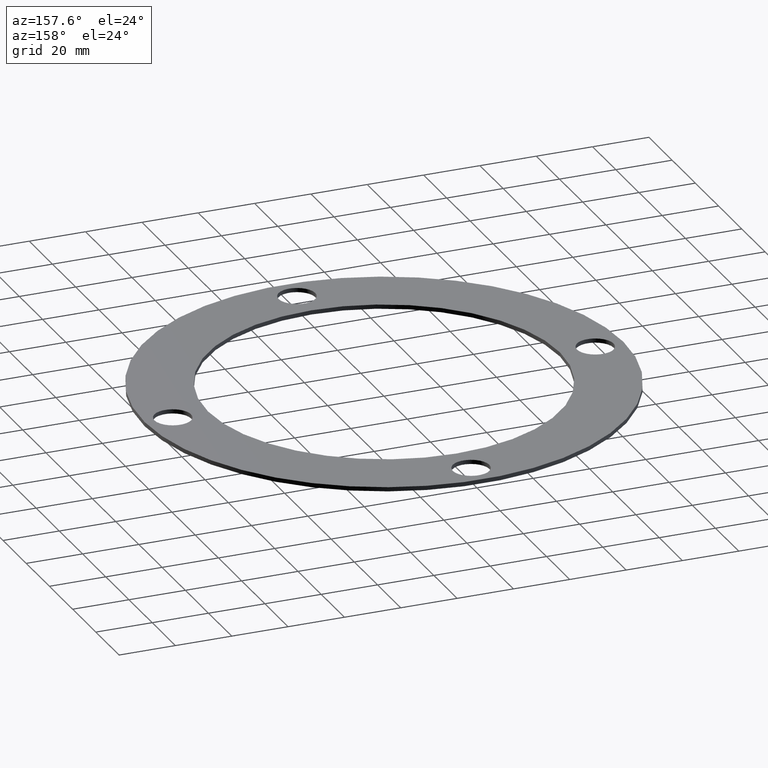
[diagram: clean part render]
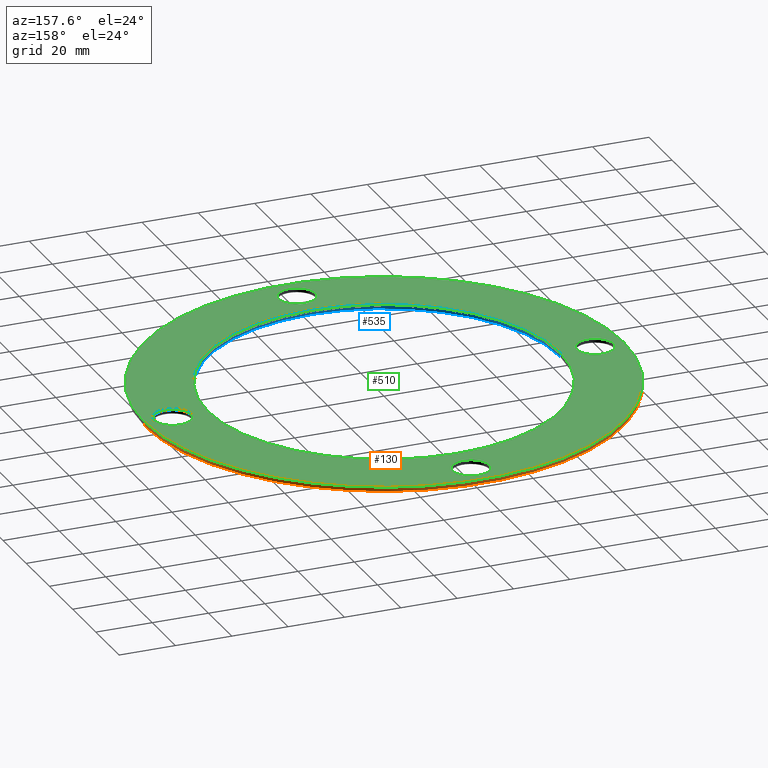
[diagram: same view with three faces highlighted in distinct colors, each labeled with its STEP entity id]
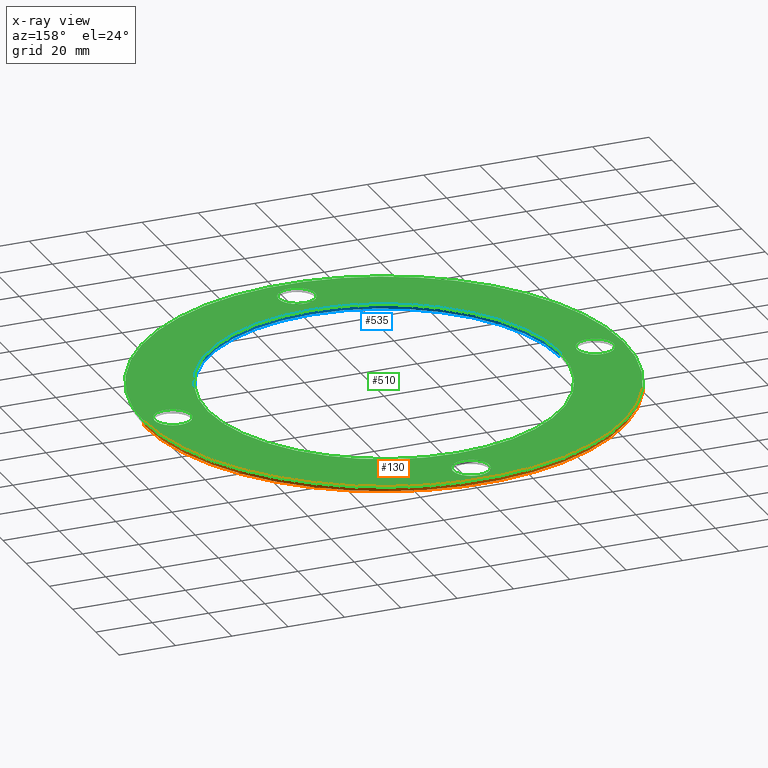
[diagram: x-ray of the same camera — body ghosted, the three highlighted faces saturated]
A machine part, auxiliary view with three faces highlighted in distinct colors.
The next image is the same camera in x-ray (body ghosted, the three faces saturated) — at least one of them is partly hidden behind the body in this view.
Their STEP definitions:

[orange] entity #130 — the highlighted cylindrical surface (partial cylindrical patch) has radius 85 mm, axis along (-0, 0, -1).
#3 = EDGE_CURVE ( 'NONE', #453, #89, #226, .T. ) ;
#15 = CARTESIAN_POINT ( 'NONE',  ( -84.99999999999998579, 1.479114197289397135E-28, 1.499999999999945821 ) ) ;
#54 = AXIS2_PLACEMENT_3D ( 'NONE', #200, #116, #537 ) ;
#70 = DIRECTION ( 'NONE',  ( -1.000000000000000000, 0.000000000000000000, 0.000000000000000000 ) ) ;
#76 = AXIS2_PLACEMENT_3D ( 'NONE', #451, #247, #70 ) ;
#89 = VERTEX_POINT ( 'NONE', #201 ) ;
#116 = DIRECTION ( 'NONE',  ( 8.517425179052550560E-32, -6.044410759837815523E-32, 1.000000000000000000 ) ) ;
#119 = ORIENTED_EDGE ( 'NONE', *, *, #157, .T. ) ;
#125 = DIRECTION ( 'NONE',  ( 1.000000000000000000, 0.000000000000000000, 7.525872184246935696E-32 ) ) ;
#130 = ADVANCED_FACE ( 'NONE', ( #455 ), #497, .T. ) ;
#132 = VECTOR ( 'NONE', #427, 1000.000000000000000 ) ;
#136 = DIRECTION ( 'NONE',  ( -8.517425179052550560E-32, 6.044410759837815523E-32, -1.000000000000000000 ) ) ;
#155 = VERTEX_POINT ( 'NONE', #380 ) ;
#157 = EDGE_CURVE ( 'NONE', #453, #446, #472, .T. ) ;
#189 = EDGE_CURVE ( 'NONE', #446, #155, #449, .T. ) ;
#200 = CARTESIAN_POINT ( 'NONE',  ( -1.972152263052529514E-28, 1.479114197289397135E-28, 1.499999999999945821 ) ) ;
#201 = CARTESIAN_POINT ( 'NONE',  ( -84.99999999999998579, 1.479567528096384971E-28, 1.499999999999945821 ) ) ;
#203 = AXIS2_PLACEMENT_3D ( 'NONE', #505, #212, #125 ) ;
#212 = DIRECTION ( 'NONE',  ( 8.517425179052550560E-32, -6.044410759837815523E-32, 1.000000000000000000 ) ) ;
#213 = EDGE_LOOP ( 'NONE', ( #529, #119, #426, #360 ) ) ;
#226 = CIRCLE ( 'NONE', #54, 84.99999999999998579 ) ;
#229 = CARTESIAN_POINT ( 'NONE',  ( 84.99999999999998579, 1.040949779275264852E-14, -7.239811402194665174E-30 ) ) ;
#247 = DIRECTION ( 'NONE',  ( -8.517425179052550560E-32, 6.044410759837815523E-32, -1.000000000000000000 ) ) ;
#349 = CARTESIAN_POINT ( 'NONE',  ( 84.99999999999998579, 1.040949779275264852E-14, 1.499999999999945821 ) ) ;
#360 = ORIENTED_EDGE ( 'NONE', *, *, #448, .F. ) ;
#380 = CARTESIAN_POINT ( 'NONE',  ( -84.99999999999998579, 1.479567528096384971E-28, 7.239811402194666575E-30 ) ) ;
#419 = VECTOR ( 'NONE', #136, 1000.000000000000000 ) ;
#426 = ORIENTED_EDGE ( 'NONE', *, *, #189, .T. ) ;
#427 = DIRECTION ( 'NONE',  ( -8.517425179052550560E-32, 6.044410759837815523E-32, -1.000000000000000000 ) ) ;
#436 = LINE ( 'NONE', #15, #419 ) ;
#446 = VERTEX_POINT ( 'NONE', #229 ) ;
#448 = EDGE_CURVE ( 'NONE', #89, #155, #436, .T. ) ;
#449 = CIRCLE ( 'NONE', #203, 84.99999999999998579 ) ;
#451 = CARTESIAN_POINT ( 'NONE',  ( -1.972152263052529514E-28, 1.479114197289397135E-28, 1.499999999999945821 ) ) ;
#453 = VERTEX_POINT ( 'NONE', #480 ) ;
#455 = FACE_OUTER_BOUND ( 'NONE', #213, .T. ) ;
#472 = LINE ( 'NONE', #349, #132 ) ;
#480 = CARTESIAN_POINT ( 'NONE',  ( 84.99999999999998579, 1.040949779275264852E-14, 1.499999999999945821 ) ) ;
#497 = CYLINDRICAL_SURFACE ( 'NONE', #76, 84.99999999999998579 ) ;
#505 = CARTESIAN_POINT ( 'NONE',  ( 0.000000000000000000, 0.000000000000000000, 0.000000000000000000 ) ) ;
#529 = ORIENTED_EDGE ( 'NONE', *, *, #3, .F. ) ;
#537 = DIRECTION ( 'NONE',  ( 1.000000000000000000, 0.000000000000000000, 0.000000000000000000 ) ) ;

[blue] entity #535 — the highlighted cylindrical surface (partial cylindrical patch) has radius 62.5 mm, axis along (-0, 0, -1).
#12 = CARTESIAN_POINT ( 'NONE',  ( 62.50000000000000000, 7.654042494671106110E-15, -5.323390736907844100E-30 ) ) ;
#41 = CARTESIAN_POINT ( 'NONE',  ( -1.972152263052529514E-28, 1.479114197289397135E-28, 1.499999999999945821 ) ) ;
#45 = ORIENTED_EDGE ( 'NONE', *, *, #342, .T. ) ;
#52 = DIRECTION ( 'NONE',  ( -8.517425179052550560E-32, 6.044410759837815523E-32, -1.000000000000000000 ) ) ;
#58 = CARTESIAN_POINT ( 'NONE',  ( -62.50000000000000000, 1.479567528096384971E-28, 5.323390736907844100E-30 ) ) ;
#65 = LINE ( 'NONE', #396, #412 ) ;
#81 = FACE_OUTER_BOUND ( 'NONE', #242, .T. ) ;
#83 = CYLINDRICAL_SURFACE ( 'NONE', #499, 62.50000000000000000 ) ;
#85 = DIRECTION ( 'NONE',  ( -8.517425179052550560E-32, 6.044410759837815523E-32, -1.000000000000000000 ) ) ;
#107 = CIRCLE ( 'NONE', #347, 62.50000000000000000 ) ;
#109 = VECTOR ( 'NONE', #85, 1000.000000000000000 ) ;
#110 = EDGE_CURVE ( 'NONE', #356, #377, #107, .T. ) ;
#122 = AXIS2_PLACEMENT_3D ( 'NONE', #220, #173, #216 ) ;
#134 = CARTESIAN_POINT ( 'NONE',  ( 62.50000000000000000, 7.654042494671106110E-15, 1.499999999999945821 ) ) ;
#173 = DIRECTION ( 'NONE',  ( 8.517425179052550560E-32, -6.044410759837815523E-32, 1.000000000000000000 ) ) ;
#195 = ORIENTED_EDGE ( 'NONE', *, *, #430, .F. ) ;
#216 = DIRECTION ( 'NONE',  ( 1.000000000000000000, 0.000000000000000000, 7.525872184246934601E-32 ) ) ;
#220 = CARTESIAN_POINT ( 'NONE',  ( 0.000000000000000000, 0.000000000000000000, 0.000000000000000000 ) ) ;
#237 = EDGE_CURVE ( 'NONE', #444, #479, #329, .T. ) ;
#242 = EDGE_LOOP ( 'NONE', ( #500, #45, #442, #195 ) ) ;
#252 = DIRECTION ( 'NONE',  ( -8.517425179052550560E-32, 6.044410759837815523E-32, -1.000000000000000000 ) ) ;
#329 = CIRCLE ( 'NONE', #122, 62.50000000000000000 ) ;
#342 = EDGE_CURVE ( 'NONE', #377, #479, #345, .T. ) ;
#345 = LINE ( 'NONE', #379, #109 ) ;
#347 = AXIS2_PLACEMENT_3D ( 'NONE', #409, #495, #536 ) ;
#356 = VERTEX_POINT ( 'NONE', #422 ) ;
#373 = DIRECTION ( 'NONE',  ( -1.000000000000000000, 0.000000000000000000, 0.000000000000000000 ) ) ;
#377 = VERTEX_POINT ( 'NONE', #134 ) ;
#379 = CARTESIAN_POINT ( 'NONE',  ( 62.50000000000000000, 7.654042494671106110E-15, 1.499999999999945821 ) ) ;
#396 = CARTESIAN_POINT ( 'NONE',  ( -62.50000000000000000, 1.479114197289397135E-28, 1.499999999999945821 ) ) ;
#409 = CARTESIAN_POINT ( 'NONE',  ( -1.972152263052529514E-28, 1.479114197289397135E-28, 1.499999999999945821 ) ) ;
#412 = VECTOR ( 'NONE', #52, 1000.000000000000000 ) ;
#422 = CARTESIAN_POINT ( 'NONE',  ( -62.50000000000000000, 1.479567528096384971E-28, 1.499999999999945821 ) ) ;
#430 = EDGE_CURVE ( 'NONE', #356, #444, #65, .T. ) ;
#442 = ORIENTED_EDGE ( 'NONE', *, *, #237, .F. ) ;
#444 = VERTEX_POINT ( 'NONE', #58 ) ;
#479 = VERTEX_POINT ( 'NONE', #12 ) ;
#495 = DIRECTION ( 'NONE',  ( 8.517425179052550560E-32, -6.044410759837815523E-32, 1.000000000000000000 ) ) ;
#499 = AXIS2_PLACEMENT_3D ( 'NONE', #41, #252, #373 ) ;
#500 = ORIENTED_EDGE ( 'NONE', *, *, #110, .T. ) ;
#535 = ADVANCED_FACE ( 'NONE', ( #81 ), #83, .F. ) ;
#536 = DIRECTION ( 'NONE',  ( 1.000000000000000000, 0.000000000000000000, 0.000000000000000000 ) ) ;

[green] entity #510 — the highlighted planar face has unit normal (-0, -0, 1).
#1 = DIRECTION ( 'NONE',  ( 8.517425179052550560E-32, -6.044410759837815523E-32, 1.000000000000000000 ) ) ;
#3 = EDGE_CURVE ( 'NONE', #453, #89, #226, .T. ) ;
#9 = DIRECTION ( 'NONE',  ( 8.517425179052550560E-32, -6.044410759837815523E-32, 1.000000000000000000 ) ) ;
#13 = EDGE_CURVE ( 'NONE', #377, #356, #36, .T. ) ;
#16 = ORIENTED_EDGE ( 'NONE', *, *, #333, .F. ) ;
#24 = DIRECTION ( 'NONE',  ( 1.000000000000000000, 0.000000000000000000, 0.000000000000000000 ) ) ;
#26 = CIRCLE ( 'NONE', #99, 6.500000000000005329 ) ;
#34 = DIRECTION ( 'NONE',  ( 8.517425179052550560E-32, -6.044410759837815523E-32, 1.000000000000000000 ) ) ;
#36 = CIRCLE ( 'NONE', #184, 62.50000000000000000 ) ;
#43 = ORIENTED_EDGE ( 'NONE', *, *, #3, .T. ) ;
#44 = DIRECTION ( 'NONE',  ( -1.000000000000000000, 0.000000000000000000, 0.000000000000000000 ) ) ;
#50 = CARTESIAN_POINT ( 'NONE',  ( -81.50000000000008527, -2.778500017052491628E-13, 1.499999999999945821 ) ) ;
#51 = EDGE_CURVE ( 'NONE', #481, #309, #484, .T. ) ;
#54 = AXIS2_PLACEMENT_3D ( 'NONE', #200, #116, #537 ) ;
#60 = CARTESIAN_POINT ( 'NONE',  ( -1.972152263052529514E-28, 1.479114197289397135E-28, 1.499999999999945821 ) ) ;
#68 = CIRCLE ( 'NONE', #504, 6.500000000000003553 ) ;
#69 = CIRCLE ( 'NONE', #186, 6.500000000000003553 ) ;
#72 = DIRECTION ( 'NONE',  ( 1.067522139062649646E-14, -1.000000000000000000, 0.000000000000000000 ) ) ;
#86 = ORIENTED_EDGE ( 'NONE', *, *, #526, .F. ) ;
#87 = EDGE_CURVE ( 'NONE', #408, #423, #160, .T. ) ;
#89 = VERTEX_POINT ( 'NONE', #201 ) ;
#90 = CARTESIAN_POINT ( 'NONE',  ( -68.50000000000007105, -2.786460221246949539E-13, 1.499999999999945821 ) ) ;
#92 = DIRECTION ( 'NONE',  ( -4.270088556250598741E-15, 1.000000000000000000, 0.000000000000000000 ) ) ;
#93 = EDGE_LOOP ( 'NONE', ( #493, #516 ) ) ;
#99 = AXIS2_PLACEMENT_3D ( 'NONE', #382, #1, #431 ) ;
#100 = FACE_BOUND ( 'NONE', #395, .T. ) ;
#105 = DIRECTION ( 'NONE',  ( 8.517425179052550560E-32, -6.044410759837815523E-32, 1.000000000000000000 ) ) ;
#107 = CIRCLE ( 'NONE', #347, 62.50000000000000000 ) ;
#108 = EDGE_LOOP ( 'NONE', ( #131, #491 ) ) ;
#110 = EDGE_CURVE ( 'NONE', #356, #377, #107, .T. ) ;
#116 = DIRECTION ( 'NONE',  ( 8.517425179052550560E-32, -6.044410759837815523E-32, 1.000000000000000000 ) ) ;
#118 = AXIS2_PLACEMENT_3D ( 'NONE', #259, #467, #511 ) ;
#120 = CARTESIAN_POINT ( 'NONE',  ( -1.972152263052529514E-28, 1.479114197289397135E-28, 1.499999999999945821 ) ) ;
#128 = EDGE_LOOP ( 'NONE', ( #137, #43 ) ) ;
#131 = ORIENTED_EDGE ( 'NONE', *, *, #246, .F. ) ;
#134 = CARTESIAN_POINT ( 'NONE',  ( 62.50000000000000000, 7.654042494671106110E-15, 1.499999999999945821 ) ) ;
#137 = ORIENTED_EDGE ( 'NONE', *, *, #466, .T. ) ;
#140 = FACE_BOUND ( 'NONE', #93, .T. ) ;
#141 = EDGE_CURVE ( 'NONE', #326, #319, #238, .T. ) ;
#143 = DIRECTION ( 'NONE',  ( 1.000000000000000000, 0.000000000000000000, 0.000000000000000000 ) ) ;
#147 = FACE_BOUND ( 'NONE', #108, .T. ) ;
#148 = EDGE_CURVE ( 'NONE', #309, #481, #68, .T. ) ;
#153 = DIRECTION ( 'NONE',  ( 8.517425179052550560E-32, -6.044410759837815523E-32, 1.000000000000000000 ) ) ;
#156 = DIRECTION ( 'NONE',  ( 8.517425179052550560E-32, -6.044410759837815523E-32, 1.000000000000000000 ) ) ;
#158 = CARTESIAN_POINT ( 'NONE',  ( 75.00000000000004263, 7.760658512692038100E-13, 1.500000000000056843 ) ) ;
#160 = CIRCLE ( 'NONE', #474, 6.500000000000005329 ) ;
#167 = AXIS2_PLACEMENT_3D ( 'NONE', #190, #9, #273 ) ;
#175 = CIRCLE ( 'NONE', #167, 84.99999999999998579 ) ;
#177 = VERTEX_POINT ( 'NONE', #253 ) ;
#182 = EDGE_LOOP ( 'NONE', ( #262, #86 ) ) ;
#183 = PLANE ( 'NONE',  #385 ) ;
#184 = AXIS2_PLACEMENT_3D ( 'NONE', #120, #153, #24 ) ;
#186 = AXIS2_PLACEMENT_3D ( 'NONE', #498, #156, #340 ) ;
#190 = CARTESIAN_POINT ( 'NONE',  ( -1.972152263052529514E-28, 1.479114197289397135E-28, 1.499999999999945821 ) ) ;
#200 = CARTESIAN_POINT ( 'NONE',  ( -1.972152263052529514E-28, 1.479114197289397135E-28, 1.499999999999945821 ) ) ;
#201 = CARTESIAN_POINT ( 'NONE',  ( -84.99999999999998579, 1.479567528096384971E-28, 1.499999999999945821 ) ) ;
#205 = CARTESIAN_POINT ( 'NONE',  ( -6.500000000000016875, 75.00000000000000000, 1.500000000000056843 ) ) ;
#215 = AXIS2_PLACEMENT_3D ( 'NONE', #365, #105, #143 ) ;
#226 = CIRCLE ( 'NONE', #54, 84.99999999999998579 ) ;
#228 = EDGE_LOOP ( 'NONE', ( #519, #258 ) ) ;
#231 = VERTEX_POINT ( 'NONE', #205 ) ;
#232 = DIRECTION ( 'NONE',  ( 1.000000000000000000, 0.000000000000000000, 7.525872184246934601E-32 ) ) ;
#238 = CIRCLE ( 'NONE', #456, 6.500000000000005329 ) ;
#246 = EDGE_CURVE ( 'NONE', #423, #408, #26, .T. ) ;
#253 = CARTESIAN_POINT ( 'NONE',  ( 6.499999999999989342, 75.00000000000000000, 1.500000000000056843 ) ) ;
#258 = ORIENTED_EDGE ( 'NONE', *, *, #13, .F. ) ;
#259 = CARTESIAN_POINT ( 'NONE',  ( -75.00000000000008527, -2.855849160286021823E-13, 1.499999999999945821 ) ) ;
#261 = DIRECTION ( 'NONE',  ( 8.517425179052550560E-32, -6.044410759837815523E-32, 1.000000000000000000 ) ) ;
#262 = ORIENTED_EDGE ( 'NONE', *, *, #376, .F. ) ;
#273 = DIRECTION ( 'NONE',  ( 1.000000000000000000, 0.000000000000000000, 0.000000000000000000 ) ) ;
#283 = CARTESIAN_POINT ( 'NONE',  ( -2.075133271841921406E-14, -75.00000000000014211, 1.499999999999945821 ) ) ;
#303 = ORIENTED_EDGE ( 'NONE', *, *, #141, .F. ) ;
#309 = VERTEX_POINT ( 'NONE', #464 ) ;
#311 = CIRCLE ( 'NONE', #118, 6.500000000000005329 ) ;
#317 = FACE_BOUND ( 'NONE', #228, .T. ) ;
#318 = CARTESIAN_POINT ( 'NONE',  ( -6.500000000000023093, -75.00000000000011369, 1.499999999999945821 ) ) ;
#319 = VERTEX_POINT ( 'NONE', #90 ) ;
#320 = FACE_BOUND ( 'NONE', #182, .T. ) ;
#326 = VERTEX_POINT ( 'NONE', #50 ) ;
#327 = FACE_OUTER_BOUND ( 'NONE', #128, .T. ) ;
#333 = EDGE_CURVE ( 'NONE', #319, #326, #311, .T. ) ;
#340 = DIRECTION ( 'NONE',  ( 1.000000000000000000, 0.000000000000000000, 0.000000000000000000 ) ) ;
#347 = AXIS2_PLACEMENT_3D ( 'NONE', #409, #495, #536 ) ;
#356 = VERTEX_POINT ( 'NONE', #422 ) ;
#365 = CARTESIAN_POINT ( 'NONE',  ( -1.381243881451198568E-14, 75.00000000000000000, 1.500000000000056843 ) ) ;
#369 = CIRCLE ( 'NONE', #215, 6.500000000000003553 ) ;
#370 = DIRECTION ( 'NONE',  ( -1.000000000000000000, 0.000000000000000000, 0.000000000000000000 ) ) ;
#372 = DIRECTION ( 'NONE',  ( 8.517425179052550560E-32, -6.044410759837815523E-32, 1.000000000000000000 ) ) ;
#376 = EDGE_CURVE ( 'NONE', #177, #231, #369, .T. ) ;
#377 = VERTEX_POINT ( 'NONE', #134 ) ;
#382 = CARTESIAN_POINT ( 'NONE',  ( 75.00000000000004263, 7.760658512692038100E-13, 1.500000000000056843 ) ) ;
#385 = AXIS2_PLACEMENT_3D ( 'NONE', #60, #447, #232 ) ;
#395 = EDGE_LOOP ( 'NONE', ( #16, #303 ) ) ;
#408 = VERTEX_POINT ( 'NONE', #527 ) ;
#409 = CARTESIAN_POINT ( 'NONE',  ( -1.972152263052529514E-28, 1.479114197289397135E-28, 1.499999999999945821 ) ) ;
#413 = CARTESIAN_POINT ( 'NONE',  ( -75.00000000000008527, -2.855849160286021823E-13, 1.499999999999945821 ) ) ;
#420 = CARTESIAN_POINT ( 'NONE',  ( -2.075133271841921406E-14, -75.00000000000014211, 1.499999999999945821 ) ) ;
#422 = CARTESIAN_POINT ( 'NONE',  ( -62.50000000000000000, 1.479567528096384971E-28, 1.499999999999945821 ) ) ;
#423 = VERTEX_POINT ( 'NONE', #445 ) ;
#431 = DIRECTION ( 'NONE',  ( 1.067522139062649646E-14, -1.000000000000000000, 0.000000000000000000 ) ) ;
#445 = CARTESIAN_POINT ( 'NONE',  ( 81.50000000000004263, 7.830047451731110384E-13, 1.500000000000056843 ) ) ;
#447 = DIRECTION ( 'NONE',  ( -7.525872184246934601E-32, -6.044410759837815523E-32, 1.000000000000000000 ) ) ;
#453 = VERTEX_POINT ( 'NONE', #480 ) ;
#456 = AXIS2_PLACEMENT_3D ( 'NONE', #413, #261, #92 ) ;
#461 = DIRECTION ( 'NONE',  ( 8.517425179052550560E-32, -6.044410759837815523E-32, 1.000000000000000000 ) ) ;
#464 = CARTESIAN_POINT ( 'NONE',  ( 6.499999999999982236, -75.00000000000011369, 1.499999999999945821 ) ) ;
#466 = EDGE_CURVE ( 'NONE', #89, #453, #175, .T. ) ;
#467 = DIRECTION ( 'NONE',  ( 8.517425179052550560E-32, -6.044410759837815523E-32, 1.000000000000000000 ) ) ;
#474 = AXIS2_PLACEMENT_3D ( 'NONE', #158, #34, #72 ) ;
#480 = CARTESIAN_POINT ( 'NONE',  ( 84.99999999999998579, 1.040949779275264852E-14, 1.499999999999945821 ) ) ;
#481 = VERTEX_POINT ( 'NONE', #318 ) ;
#484 = CIRCLE ( 'NONE', #545, 6.500000000000003553 ) ;
#491 = ORIENTED_EDGE ( 'NONE', *, *, #87, .F. ) ;
#493 = ORIENTED_EDGE ( 'NONE', *, *, #148, .F. ) ;
#495 = DIRECTION ( 'NONE',  ( 8.517425179052550560E-32, -6.044410759837815523E-32, 1.000000000000000000 ) ) ;
#498 = CARTESIAN_POINT ( 'NONE',  ( -1.381243881451198568E-14, 75.00000000000000000, 1.500000000000056843 ) ) ;
#504 = AXIS2_PLACEMENT_3D ( 'NONE', #420, #461, #44 ) ;
#510 = ADVANCED_FACE ( 'NONE', ( #100, #140, #147, #320, #327, #317 ), #183, .T. ) ;
#511 = DIRECTION ( 'NONE',  ( -4.270088556250598741E-15, 1.000000000000000000, 0.000000000000000000 ) ) ;
#516 = ORIENTED_EDGE ( 'NONE', *, *, #51, .F. ) ;
#519 = ORIENTED_EDGE ( 'NONE', *, *, #110, .F. ) ;
#526 = EDGE_CURVE ( 'NONE', #231, #177, #69, .T. ) ;
#527 = CARTESIAN_POINT ( 'NONE',  ( 68.50000000000002842, 7.838007655925567790E-13, 1.500000000000056843 ) ) ;
#536 = DIRECTION ( 'NONE',  ( 1.000000000000000000, 0.000000000000000000, 0.000000000000000000 ) ) ;
#537 = DIRECTION ( 'NONE',  ( 1.000000000000000000, 0.000000000000000000, 0.000000000000000000 ) ) ;
#545 = AXIS2_PLACEMENT_3D ( 'NONE', #283, #372, #370 ) ;